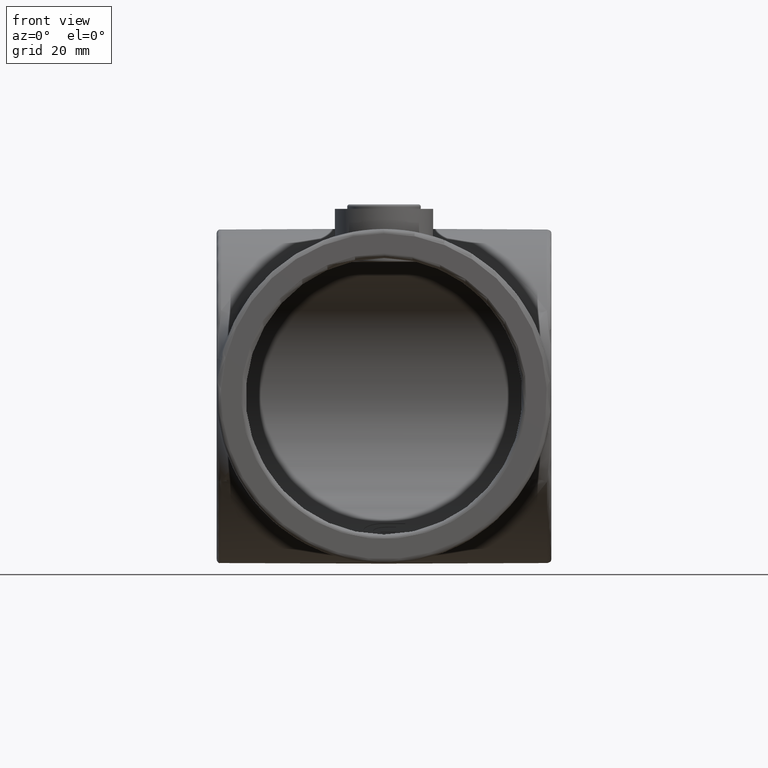
[diagram: clean part render]
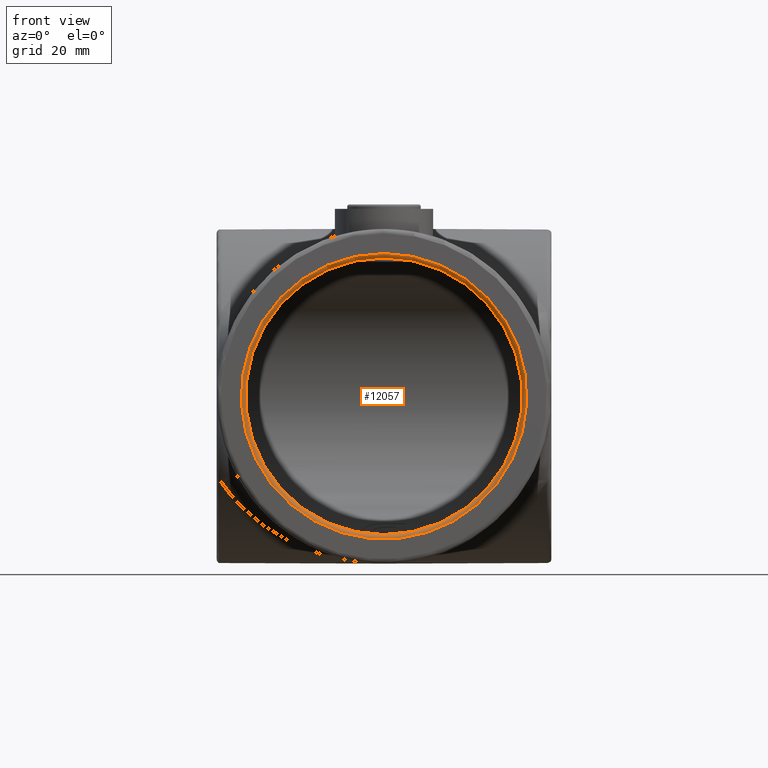
[diagram: same view with one face highlighted and labeled with its STEP entity id]
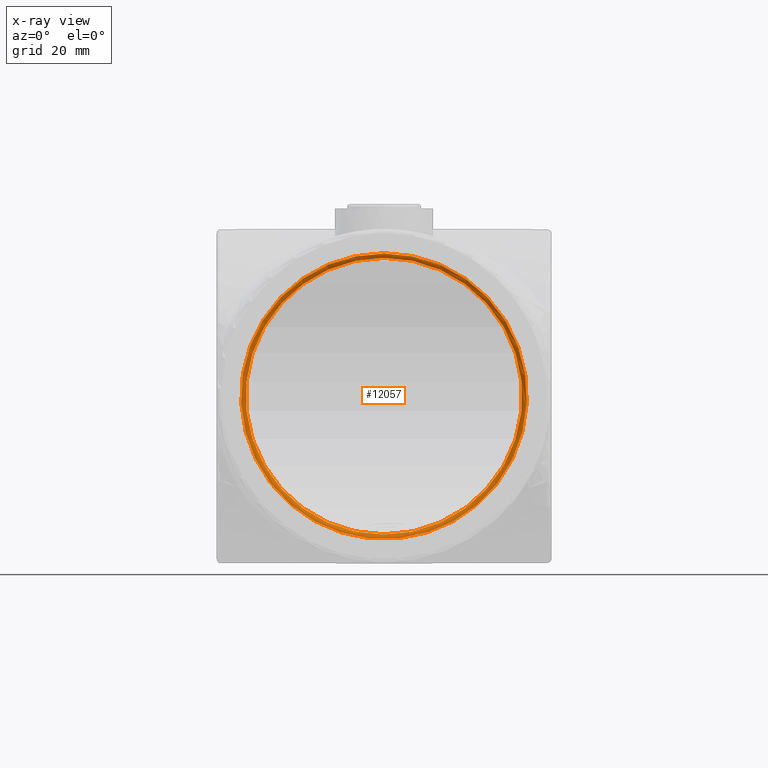
[diagram: x-ray of the same camera — body ghosted, the highlighted face saturated]
A machine part, front view. The second image highlights one B-rep face of the part: STEP entity #12057.
The next image is the same camera in x-ray: the body ghosted, the highlighted face saturated — about 0% of this face is hidden behind the body in this view.
In plain terms, the highlighted toroidal blend (fillet) surface has major radius 32 mm and minor (blend) radius 1 mm.
Its self-contained STEP definition (entity closure, byte-faithful):
#536 = AXIS2_PLACEMENT_3D ( 'NONE', #7628, #2241, #9762 ) ;
#1155 = EDGE_LOOP ( 'NONE', ( #4788 ) ) ;
#1639 = DIRECTION ( 'NONE',  ( -0.000000000000000000, -1.000000000000000000, -0.000000000000000000 ) ) ;
#2241 = DIRECTION ( 'NONE',  ( 0.000000000000000000, 1.000000000000000000, 0.000000000000000000 ) ) ;
#3408 = VERTEX_POINT ( 'NONE', #10735 ) ;
#3749 = CIRCLE ( 'NONE', #8870, 31.00000000000000000 ) ;
#4788 = ORIENTED_EDGE ( 'NONE', *, *, #11473, .F. ) ;
#6079 = CARTESIAN_POINT ( 'NONE',  ( 0.000000000000000000, 1.000000000000000888, 0.000000000000000000 ) ) ;
#6427 = ORIENTED_EDGE ( 'NONE', *, *, #13481, .F. ) ;
#7459 = CARTESIAN_POINT ( 'NONE',  ( 0.000000000000000000, 0.000000000000000000, 0.000000000000000000 ) ) ;
#7628 = CARTESIAN_POINT ( 'NONE',  ( 0.000000000000000000, 1.000000000000000888, 0.000000000000000000 ) ) ;
#7815 = TOROIDAL_SURFACE ( 'NONE', #536, 32.00000000000000000, 1.000000000000000000 ) ;
#8002 = FACE_OUTER_BOUND ( 'NONE', #13216, .T. ) ;
#8662 = FACE_OUTER_BOUND ( 'NONE', #1155, .T. ) ;
#8870 = AXIS2_PLACEMENT_3D ( 'NONE', #6079, #1639, #11359 ) ;
#8995 = CIRCLE ( 'NONE', #10462, 32.00000000000000000 ) ;
#9125 = VERTEX_POINT ( 'NONE', #12877 ) ;
#9591 = DIRECTION ( 'NONE',  ( 0.000000000000000000, 1.000000000000000000, 0.000000000000000000 ) ) ;
#9762 = DIRECTION ( 'NONE',  ( 0.000000000000000000, 0.000000000000000000, 1.000000000000000000 ) ) ;
#10462 = AXIS2_PLACEMENT_3D ( 'NONE', #7459, #9591, #13854 ) ;
#10735 = CARTESIAN_POINT ( 'NONE',  ( 0.000000000000000000, 1.000000000000000888, 31.00000000000000000 ) ) ;
#11359 = DIRECTION ( 'NONE',  ( 0.000000000000000000, 0.000000000000000000, 1.000000000000000000 ) ) ;
#11473 = EDGE_CURVE ( 'NONE', #9125, #9125, #8995, .T. ) ;
#12057 = ADVANCED_FACE ( 'NONE', ( #8662, #8002 ), #7815, .T. ) ;
#12877 = CARTESIAN_POINT ( 'NONE',  ( 0.000000000000000000, 0.000000000000000000, 32.00000000000000000 ) ) ;
#13216 = EDGE_LOOP ( 'NONE', ( #6427 ) ) ;
#13481 = EDGE_CURVE ( 'NONE', #3408, #3408, #3749, .T. ) ;
#13854 = DIRECTION ( 'NONE',  ( 0.000000000000000000, 0.000000000000000000, 1.000000000000000000 ) ) ;